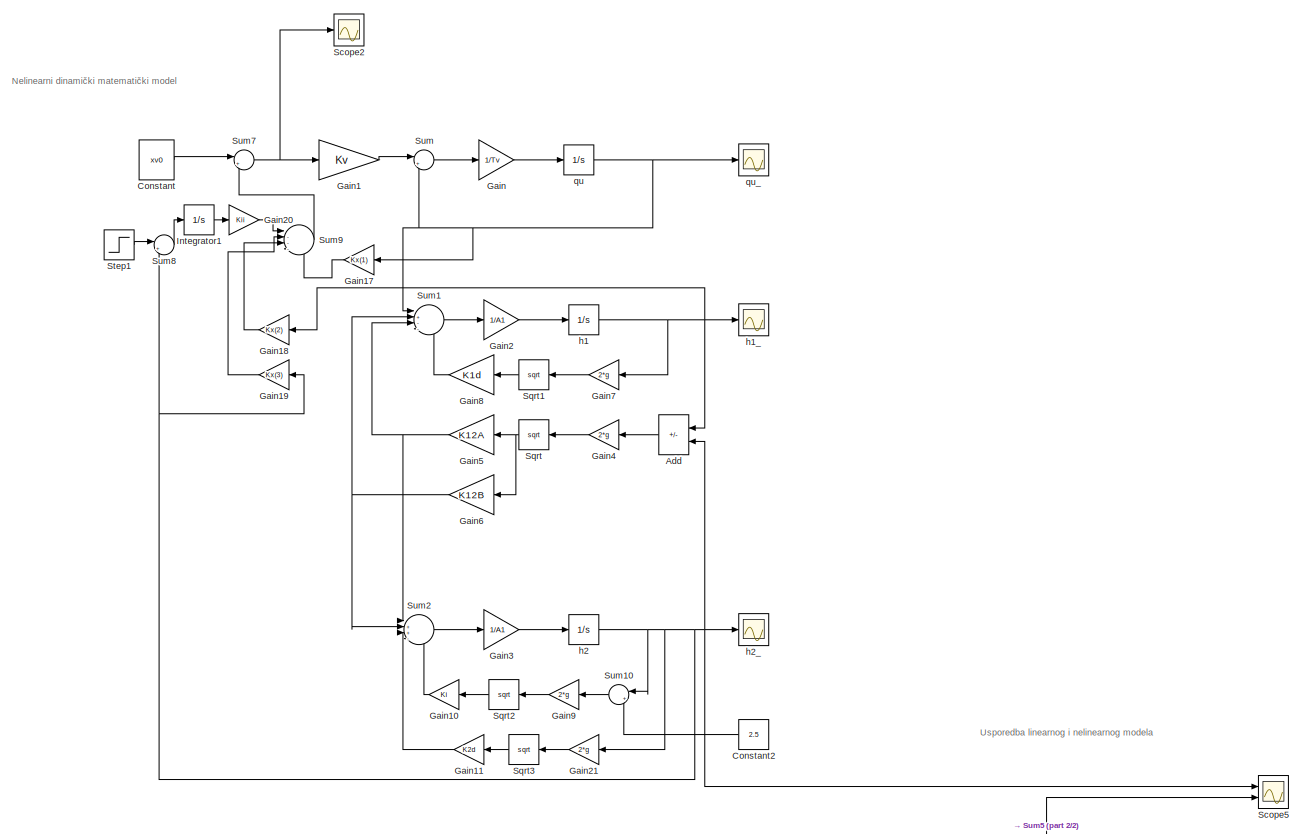
[diagram: root canvas - part 1/2, full width, middle band]
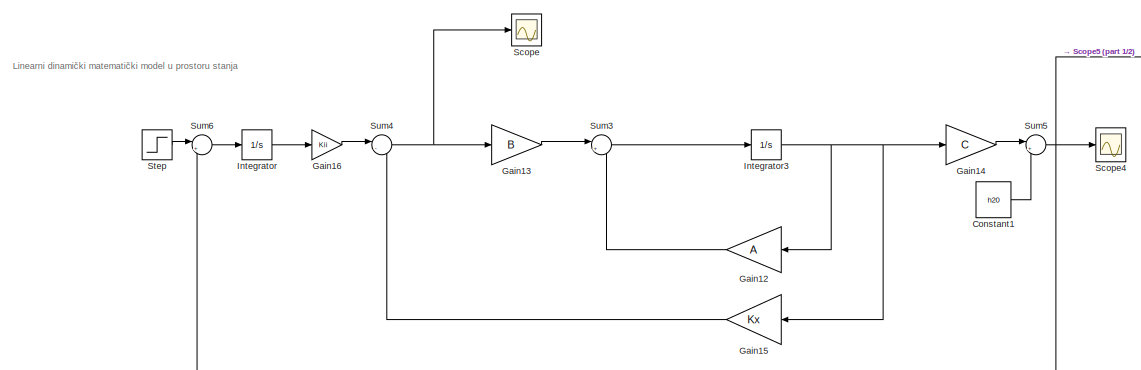
[diagram: root canvas - part 2/2, full width, bottom band]
MODEL slx_dc2877313e9a
KIND model
CONFIG AbsTol = auto
CONFIG EnableMultiTasking = off
CONFIG FixedStep = auto
CONFIG MaxStep = auto
CONFIG MinStep = auto
CONFIG RelTol = 1e-3
CONFIG SampleTimeConstraint = Unconstrained
CONFIG SolverName = VariableStepAuto
CONFIG StartTime = 0.0
CONFIG StopTime = 500
BLOCK [Sum] Add
  IconShape = rectangular
  Inputs = +-
  NameLocation = top
  Ports = [2, 1]
BLOCK [Constant] Constant
  Value = xv0
BLOCK [Constant] Constant1
  Value = h20
BLOCK [Constant] Constant2
  NameLocation = top
  Value = 2.5
BLOCK [Gain] Gain
  Gain = 1/Tv
BLOCK [Gain] Gain1
  Gain = Kv
BLOCK [Gain] Gain10
  Gain = Ki
  NameLocation = top
BLOCK [Gain] Gain11
  Gain = K2d
  NameLocation = top
BLOCK [Gain] Gain12
  Gain = A
  Multiplication = Matrix(K*u)
  NameLocation = top
BLOCK [Gain] Gain13
  Gain = B
  Multiplication = Matrix(K*u)
BLOCK [Gain] Gain14
  Gain = C
  Multiplication = Matrix(K*u)
BLOCK [Gain] Gain15
  Gain = Kx
  Multiplication = Matrix(K*u)
  NameLocation = top
BLOCK [Gain] Gain16
  Gain = Kii
BLOCK [Gain] Gain17
  Gain = Kx(1)
  NameLocation = top
BLOCK [Gain] Gain18
  Gain = Kx(2)
  NameLocation = top
BLOCK [Gain] Gain19
  Gain = Kx(3)
  NameLocation = top
BLOCK [Gain] Gain2
  Gain = 1/A1
BLOCK [Gain] Gain20
  Gain = Kii
BLOCK [Gain] Gain21
  Gain = 2*g
  NameLocation = top
BLOCK [Gain] Gain3
  Gain = 1/A1
BLOCK [Gain] Gain4
  Gain = 2*g
  NameLocation = top
BLOCK [Gain] Gain5
  Gain = K12A
  NameLocation = top
BLOCK [Gain] Gain6
  Gain = K12B
  NameLocation = top
BLOCK [Gain] Gain7
  Gain = 2*g
  NameLocation = top
BLOCK [Gain] Gain8
  Gain = K1d
  NameLocation = top
BLOCK [Gain] Gain9
  Gain = 2*g
  NameLocation = top
BLOCK [Integrator] Integrator
  Ports = [1, 1]
BLOCK [Integrator] Integrator1
  Ports = [1, 1]
BLOCK [Integrator] Integrator3
  Ports = [1, 1]
BLOCK [Scope] Scope
  Floating = off
  NumInputPorts = 1
  Ports = [1]
  ScopeSpecificationString = Simulink.scopes.TimeScopeBlockCfg('CurrentConfiguration', extmgr.ConfigurationSet(extmgr.Configuration('Core','General UI',true),extmgr.Configuration('Core','Source UI',true),extmgr.Configuration('Sources','WiredSimulink',true,'DataLoggingVariableName','ScopeData1'),extmgr.Configuration('Visuals','Time Domain',true,'SerializedDisplays',{struct('MinYLimReal','-10.98839','MaxYLimReal','98.89547','YL...<+1400ch>
BLOCK [Scope] Scope2
  Floating = off
  NumInputPorts = 1
  Ports = [1]
  ScopeSpecificationString = Simulink.scopes.TimeScopeBlockCfg('CurrentConfiguration', extmgr.ConfigurationSet(extmgr.Configuration('Core','General UI',true),extmgr.Configuration('Core','Source UI',true),extmgr.Configuration('Sources','WiredSimulink',true,'DataLoggingVariableName','ScopeData2'),extmgr.Configuration('Visuals','Time Domain',true,'SerializedDisplays',{struct('MinYLimReal','-47.54764','MaxYLimReal','122.59806','Y...<+1373ch>
BLOCK [Scope] Scope4
  Floating = off
  NumInputPorts = 1
  Ports = [1]
  ScopeSpecificationString = Simulink.scopes.TimeScopeBlockCfg('CurrentConfiguration', extmgr.ConfigurationSet(extmgr.Configuration('Core','General UI',true),extmgr.Configuration('Core','Source UI',true),extmgr.Configuration('Sources','WiredSimulink',true,'DataLoggingVariableName','ScopeData5'),extmgr.Configuration('Visuals','Time Domain',true,'SerializedDisplays',{struct('MinYLimReal','0.80608','MaxYLimReal','26.74526','YLab...<+1398ch>
BLOCK [Scope] Scope5
  Floating = off
  NumInputPorts = 2
  Ports = [2]
  ScopeSpecificationString = Simulink.scopes.TimeScopeBlockCfg('CurrentConfiguration', extmgr.ConfigurationSet(extmgr.Configuration('Core','General UI',true),extmgr.Configuration('Core','Source UI',true),extmgr.Configuration('Sources','WiredSimulink',true,'DataLoggingVariableName','ScopeData6'),extmgr.Configuration('Visuals','Time Domain',true,'SerializedDisplays',{struct('MinYLimReal','0.69503','MaxYLimReal','27.74474','YLab...<+1403ch>
BLOCK [Sqrt] Sqrt
  NameLocation = top
BLOCK [Sqrt] Sqrt1
  NameLocation = top
BLOCK [Sqrt] Sqrt2
  NameLocation = top
BLOCK [Sqrt] Sqrt3
  NameLocation = top
BLOCK [Step] Step
  After = h20+20
  Before = h20
  SampleTime = 0
BLOCK [Step] Step1
  After = h20+20
  Before = h20
  SampleTime = 0
  Time = 0
BLOCK [Sum] Sum
  Inputs = |+-
  Ports = [2, 1]
BLOCK [Sum] Sum1
  Inputs = |+---
  Ports = [4, 1]
BLOCK [Sum] Sum10
  Inputs = |+-
  NameLocation = top
  Ports = [2, 1]
BLOCK [Sum] Sum2
  Inputs = |++--
  Ports = [4, 1]
BLOCK [Sum] Sum3
  Inputs = |++
  Ports = [2, 1]
BLOCK [Sum] Sum4
  Inputs = |--
  Ports = [2, 1]
BLOCK [Sum] Sum5
  Inputs = |++
  Ports = [2, 1]
BLOCK [Sum] Sum6
  Inputs = |+-
  Ports = [2, 1]
BLOCK [Sum] Sum7
  Inputs = |++
  Ports = [2, 1]
BLOCK [Sum] Sum8
  Inputs = |+-
  Ports = [2, 1]
BLOCK [Sum] Sum9
  Inputs = |----
  Ports = [4, 1]
BLOCK [Integrator] h1
  InitialCondition = h10
  Ports = [1, 1]
BLOCK [Scope] h1_
  Floating = off
  NumInputPorts = 1
  Ports = [1]
  ScopeSpecificationString = Simulink.scopes.TimeScopeBlockCfg('CurrentConfiguration', extmgr.ConfigurationSet(extmgr.Configuration('Core','General UI',true),extmgr.Configuration('Core','Source UI',true),extmgr.Configuration('Sources','WiredSimulink',true,'DataLoggingVariableName','ScopeData7'),extmgr.Configuration('Visuals','Time Domain',true,'SerializedDisplays',{struct('MinYLimReal','2.74418','MaxYLimReal','43.12392','YLab...<+1363ch>
BLOCK [Integrator] h2
  InitialCondition = h20
  Ports = [1, 1]
BLOCK [Scope] h2_
  Floating = off
  NumInputPorts = 1
  Ports = [1]
  ScopeSpecificationString = Simulink.scopes.TimeScopeBlockCfg('CurrentConfiguration', extmgr.ConfigurationSet(extmgr.Configuration('Core','General UI',true),extmgr.Configuration('Core','Source UI',true),extmgr.Configuration('Sources','WiredSimulink',true,'DataLoggingVariableName','ScopeData8'),extmgr.Configuration('Visuals','Time Domain',true,'SerializedDisplays',{struct('MinYLimReal','0.0955','MaxYLimReal','0.69968','YLabel...<+1355ch>
BLOCK [Integrator] qu
  InitialCondition = qu0
  Ports = [1, 1]
BLOCK [Scope] qu_
  Floating = off
  NumInputPorts = 1
  Ports = [1]
  ScopeSpecificationString = Simulink.scopes.TimeScopeBlockCfg('CurrentConfiguration', extmgr.ConfigurationSet(extmgr.Configuration('Core','General UI',true),extmgr.Configuration('Core','Source UI',true),extmgr.Configuration('Sources','WiredSimulink',true),extmgr.Configuration('Visuals','Time Domain',true,'SerializedDisplays',{struct('MinYLimReal','-433.77208','MaxYLimReal','631.96057','YLabelReal','','MinYLimMag',' 0.00000',...<+1336ch>
ANNOTATION (root): Linearni dinamički matematički model u prostoru stanja
ANNOTATION (root): Nelinearni dinamički matematički model
ANNOTATION (root): Usporedba linearnog i nelinearnog modela
LINE Add:1 -> Gain4:1
LINE Constant1:1 -> Sum5:2
LINE Constant2:1 -> Sum10:2
LINE Constant:1 -> Sum7:1
LINE Gain10:1 -> Sum2:4
LINE Gain11:1 -> Sum2:3
LINE Gain12:1 -> Sum3:2
LINE Gain13:1 -> Sum3:1
LINE Gain14:1 -> Sum5:1
LINE Gain15:1 -> Sum4:2
LINE Gain16:1 -> Sum4:1
LINE Gain17:1 -> Sum9:4
LINE Gain18:1 -> Sum9:3
LINE Gain19:1 -> Sum9:2
LINE Gain1:1 -> Sum:1
LINE Gain20:1 -> Sum9:1
LINE Gain21:1 -> Sqrt3:1
LINE Gain2:1 -> h1:1
LINE Gain3:1 -> h2:1
LINE Gain4:1 -> Sqrt:1
NET Gain5:1 -> Sum1:3, Sum2:1
NET Gain6:1 -> Sum1:2, Sum2:2
LINE Gain7:1 -> Sqrt1:1
LINE Gain8:1 -> Sum1:4
LINE Gain9:1 -> Sqrt2:1
LINE Gain:1 -> qu:1
LINE Integrator1:1 -> Gain20:1
NET Integrator3:1 -> Gain12:1, Gain14:1, Gain15:1
LINE Integrator:1 -> Gain16:1
LINE Sqrt1:1 -> Gain8:1
LINE Sqrt2:1 -> Gain10:1
LINE Sqrt3:1 -> Gain11:1
NET Sqrt:1 -> Gain5:1, Gain6:1
LINE Step1:1 -> Sum8:1
LINE Step:1 -> Sum6:1
LINE Sum10:1 -> Gain9:1
LINE Sum1:1 -> Gain2:1
LINE Sum2:1 -> Gain3:1
LINE Sum3:1 -> Integrator3:1
NET Sum4:1 -> Gain13:1, Scope:1
NET Sum5:1 -> Scope4:1, Scope5:2, Sum6:2
LINE Sum6:1 -> Integrator:1
NET Sum7:1 -> Gain1:1, Scope2:1
LINE Sum8:1 -> Integrator1:1
LINE Sum9:1 -> Sum7:2
LINE Sum:1 -> Gain:1
NET h1:1 -> Add:1, Gain18:1, Gain7:1, h1_:1
NET h2:1 -> Add:2, Gain19:1, Gain21:1, Scope5:1, Sum10:1, Sum8:2, h2_:1
NET qu:1 -> Gain17:1, Sum1:1, Sum:2, qu_:1
note: NET lines group one-source signal fan-out (src -> all destinations, sorted); 1:1 wires keep LINE
